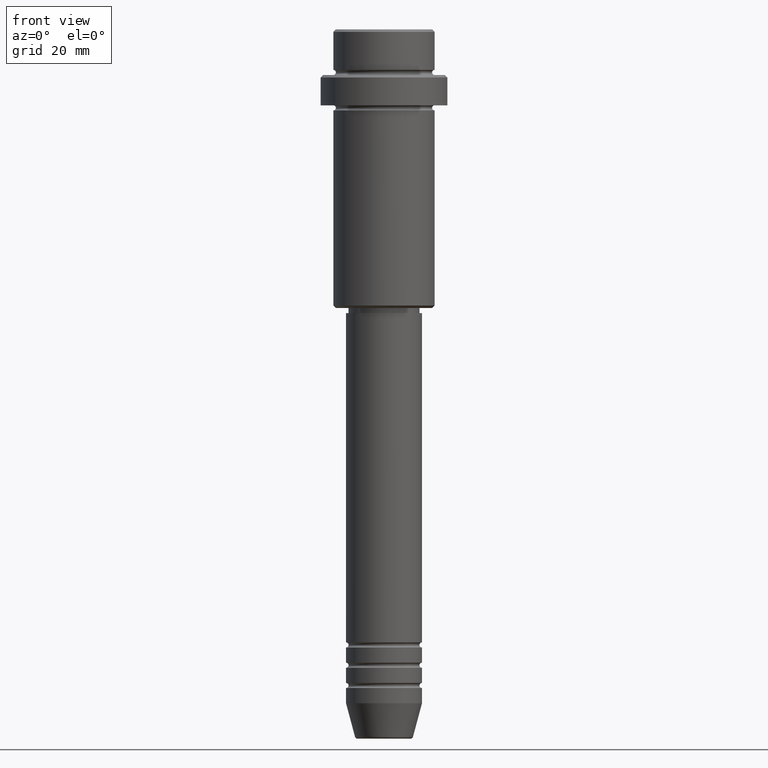
[diagram: clean part render]
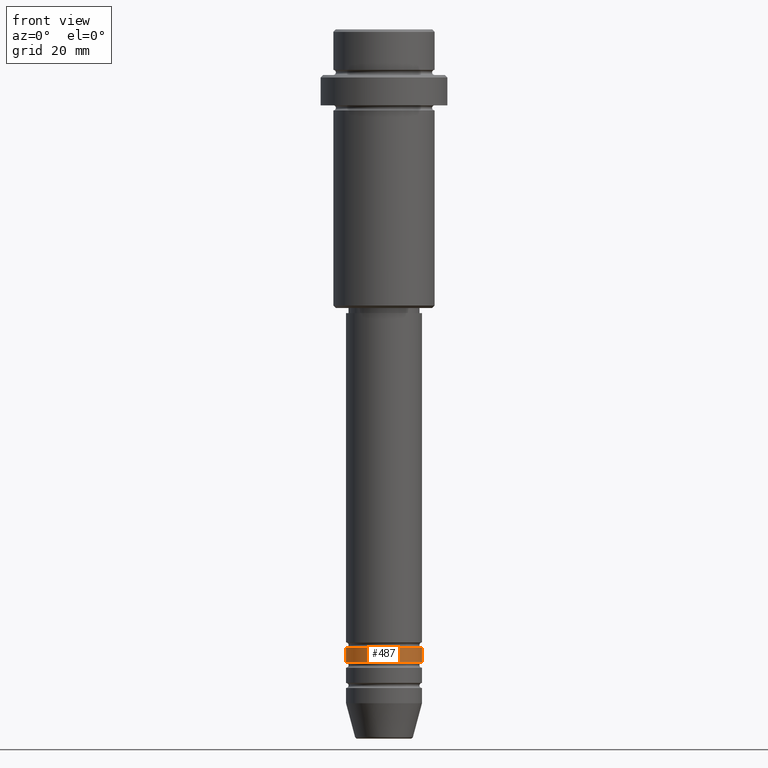
[diagram: same view with one face highlighted and labeled with its STEP entity id]
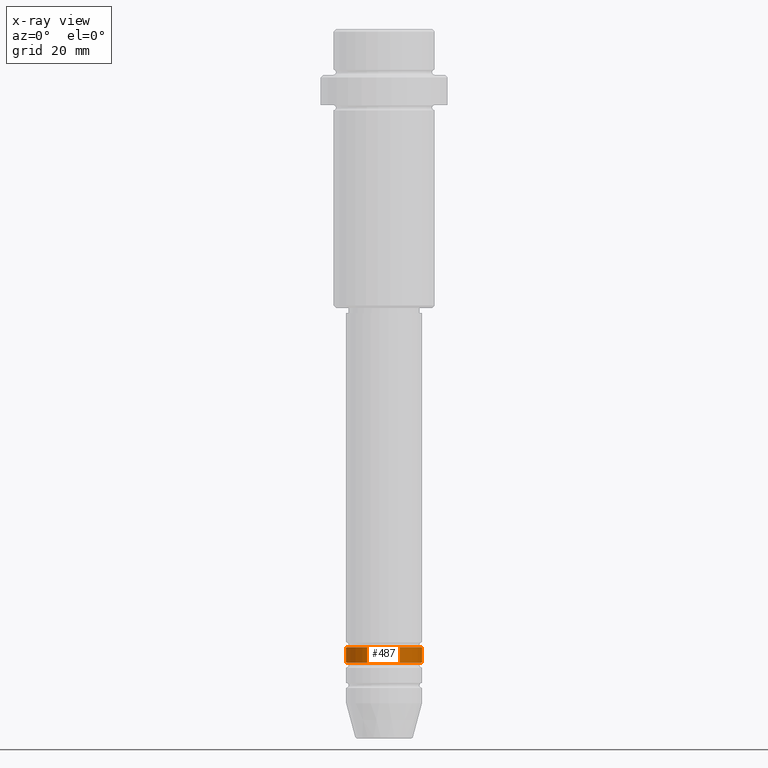
[diagram: x-ray of the same camera — body ghosted, the highlighted face saturated]
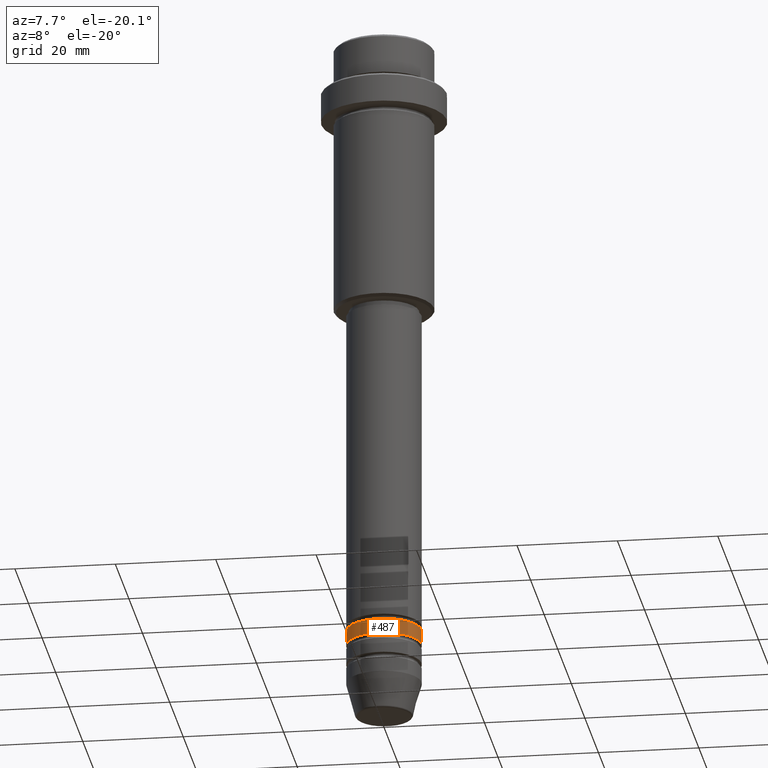
[diagram: same view with one face highlighted and labeled with its STEP entity id]
A machine part, front view. The second image highlights one B-rep face of the part: STEP entity #487.
The next image is the same camera in x-ray: the body ghosted, the highlighted face saturated — about 0% of this face is hidden behind the body in this view.
A second angle (auxiliary view) of the same face is appended — the face is thin or edge-on in the first view.
In plain terms, the highlighted cylindrical surface (partial cylindrical patch) has radius 7.5 mm, axis along (-0, -0, 1).
Its self-contained STEP definition (entity closure, byte-faithful):
#26 = DIRECTION ( 'NONE',  ( 1.000000000000000000, 0.000000000000000000, 0.000000000000000000 ) ) ;
#62 = DIRECTION ( 'NONE',  ( 1.000000000000000000, 0.000000000000000000, 0.000000000000000000 ) ) ;
#78 = AXIS2_PLACEMENT_3D ( 'NONE', #815, #588, #26 ) ;
#81 = VERTEX_POINT ( 'NONE', #672 ) ;
#277 = DIRECTION ( 'NONE',  ( -0.000000000000000000, -0.000000000000000000, 1.000000000000000000 ) ) ;
#312 = AXIS2_PLACEMENT_3D ( 'NONE', #1264, #277, #62 ) ;
#323 = EDGE_CURVE ( 'NONE', #527, #1109, #962, .T. ) ;
#374 = EDGE_LOOP ( 'NONE', ( #1174, #993, #1080, #550 ) ) ;
#375 = CARTESIAN_POINT ( 'NONE',  ( -7.500000000000000000, 9.184850993605147944E-16, -121.9999999999999005 ) ) ;
#434 = EDGE_CURVE ( 'NONE', #81, #1203, #783, .T. ) ;
#436 = FACE_OUTER_BOUND ( 'NONE', #374, .T. ) ;
#446 = CARTESIAN_POINT ( 'NONE',  ( -7.500000000000000000, 9.184850993605147944E-16, 0.000000000000000000 ) ) ;
#463 = CARTESIAN_POINT ( 'NONE',  ( 7.500000000000000000, 0.000000000000000000, -124.9999999999999005 ) ) ;
#487 = ADVANCED_FACE ( 'NONE', ( #436 ), #770, .T. ) ;
#506 = AXIS2_PLACEMENT_3D ( 'NONE', #1201, #1305, #1414 ) ;
#512 = DIRECTION ( 'NONE',  ( -0.000000000000000000, -0.000000000000000000, 1.000000000000000000 ) ) ;
#518 = CIRCLE ( 'NONE', #78, 7.500000000000000000 ) ;
#527 = VERTEX_POINT ( 'NONE', #463 ) ;
#550 = ORIENTED_EDGE ( 'NONE', *, *, #1272, .F. ) ;
#588 = DIRECTION ( 'NONE',  ( -0.000000000000000000, -0.000000000000000000, 1.000000000000000000 ) ) ;
#622 = VECTOR ( 'NONE', #886, 1000.000000000000000 ) ;
#672 = CARTESIAN_POINT ( 'NONE',  ( -7.500000000000000000, 9.184850993605147944E-16, -124.9999999999999005 ) ) ;
#770 = CYLINDRICAL_SURFACE ( 'NONE', #506, 7.500000000000000000 ) ;
#783 = LINE ( 'NONE', #446, #622 ) ;
#815 = CARTESIAN_POINT ( 'NONE',  ( 0.000000000000000000, 0.000000000000000000, -124.9999999999999005 ) ) ;
#886 = DIRECTION ( 'NONE',  ( -0.000000000000000000, -0.000000000000000000, 1.000000000000000000 ) ) ;
#899 = CARTESIAN_POINT ( 'NONE',  ( 7.500000000000000000, 0.000000000000000000, -121.9999999999999005 ) ) ;
#962 = LINE ( 'NONE', #975, #1360 ) ;
#975 = CARTESIAN_POINT ( 'NONE',  ( 7.500000000000000000, 0.000000000000000000, 0.000000000000000000 ) ) ;
#993 = ORIENTED_EDGE ( 'NONE', *, *, #1138, .T. ) ;
#1080 = ORIENTED_EDGE ( 'NONE', *, *, #323, .T. ) ;
#1109 = VERTEX_POINT ( 'NONE', #899 ) ;
#1138 = EDGE_CURVE ( 'NONE', #81, #527, #518, .T. ) ;
#1174 = ORIENTED_EDGE ( 'NONE', *, *, #434, .F. ) ;
#1201 = CARTESIAN_POINT ( 'NONE',  ( 0.000000000000000000, 0.000000000000000000, 0.000000000000000000 ) ) ;
#1203 = VERTEX_POINT ( 'NONE', #375 ) ;
#1264 = CARTESIAN_POINT ( 'NONE',  ( 0.000000000000000000, 0.000000000000000000, -121.9999999999999005 ) ) ;
#1272 = EDGE_CURVE ( 'NONE', #1203, #1109, #1347, .T. ) ;
#1305 = DIRECTION ( 'NONE',  ( -0.000000000000000000, -0.000000000000000000, 1.000000000000000000 ) ) ;
#1347 = CIRCLE ( 'NONE', #312, 7.500000000000000000 ) ;
#1360 = VECTOR ( 'NONE', #512, 1000.000000000000000 ) ;
#1414 = DIRECTION ( 'NONE',  ( 1.000000000000000000, 0.000000000000000000, 0.000000000000000000 ) ) ;